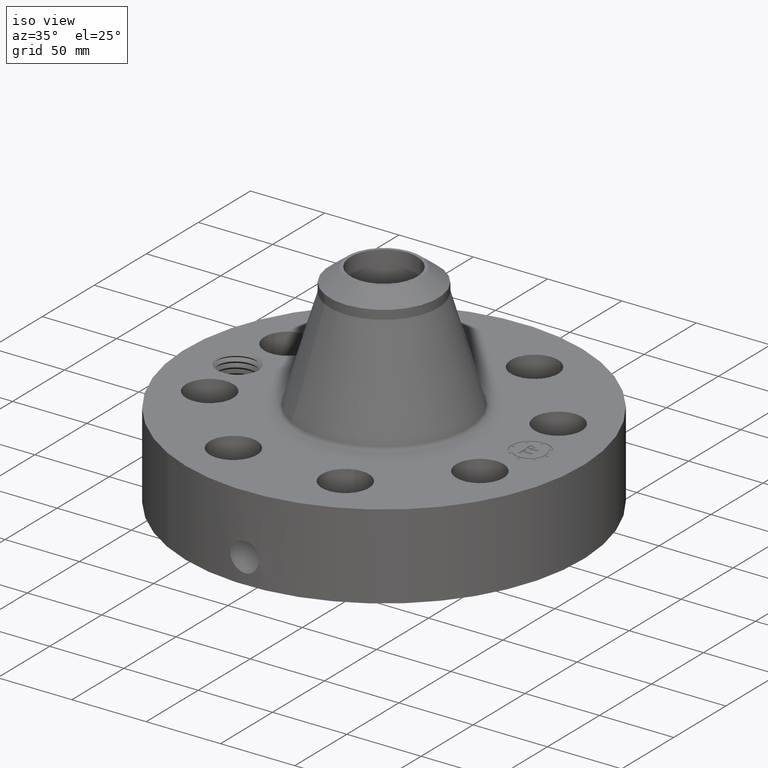
[diagram: clean part render]
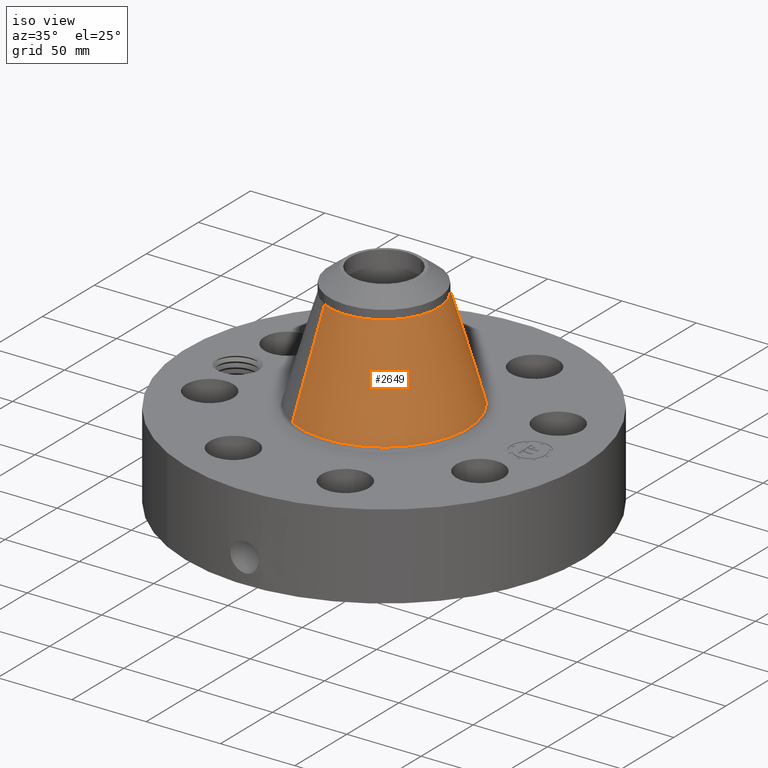
[diagram: same view with one face highlighted and labeled with its STEP entity id]
A machine part, iso view. The second image highlights one B-rep face of the part: STEP entity #2649.
In plain terms, the highlighted conical surface has half-angle 16.307 deg.
Its self-contained STEP definition (entity closure, byte-faithful):
#1891=AXIS2_PLACEMENT_3D('Circle Axis2P3D',#1889,#1890,$) ;
#2622=AXIS2_PLACEMENT_3D('Cone Axis2P3D',#2619,#2620,#2621) ;
#2633=AXIS2_PLACEMENT_3D('Circle Axis2P3D',#2631,#2632,$) ;
#1886=CARTESIAN_POINT('Vertex',(1.06660238165,1.95240256357,2.58630578825)) ;
#1889=CARTESIAN_POINT('Axis2P3D Location',(0.,0.,2.58630578825)) ;
#1893=CARTESIAN_POINT('Vertex',(-1.06660238165,-1.95240256357,2.58630578825)) ;
#2619=CARTESIAN_POINT('Axis2P3D Location',(0.,0.,5.26871616062)) ;
#2624=CARTESIAN_POINT('Line Origine',(0.878487578624,1.60806072635,3.92751097444)) ;
#2628=CARTESIAN_POINT('Vertex',(0.690372775593,1.26371888913,5.26871616062)) ;
#2631=CARTESIAN_POINT('Axis2P3D Location',(0.,0.,5.26871616062)) ;
#2635=CARTESIAN_POINT('Vertex',(-0.690372775593,-1.26371888913,5.26871616062)) ;
#2638=CARTESIAN_POINT('Line Origine',(-0.878487578624,-1.60806072635,3.92751097444)) ;
#1890=DIRECTION('Axis2P3D Direction',(0.,0.,-0.0393700787402)) ;
#2620=DIRECTION('Axis2P3D Direction',(0.,0.,-0.0393700787402)) ;
#2621=DIRECTION('Axis2P3D XDirection',(-0.0188750212049,-0.0345504945626,0.)) ;
#2625=DIRECTION('Vector Direction',(0.00529982467806,0.00970126400041,-0.0377862466406)) ;
#2632=DIRECTION('Axis2P3D Direction',(0.,0.,-0.0393700787402)) ;
#2639=DIRECTION('Vector Direction',(-0.00529982467806,-0.00970126400041,-0.0377862466406)) ;
#2626=VECTOR('Line Direction',#2625,0.0393700787402) ;
#2640=VECTOR('Line Direction',#2639,0.0393700787402) ;
#2644=ORIENTED_EDGE('',*,*,#1895,.F.) ;
#2645=ORIENTED_EDGE('',*,*,#2630,.T.) ;
#2646=ORIENTED_EDGE('',*,*,#2637,.T.) ;
#2647=ORIENTED_EDGE('',*,*,#2642,.F.) ;
#2649=ADVANCED_FACE('PartBody',(#2648),#2623,.T.) ;
#1892=CIRCLE('generated circle',#1891,2.22475086488) ;
#2634=CIRCLE('generated circle',#2633,1.44000000001) ;
#2623=CONICAL_SURFACE('Cone',#2622,1.44000000001,0.284612017236) ;
#1895=EDGE_CURVE('',#1887,#1894,#1892,.T.) ;
#2630=EDGE_CURVE('',#1887,#2629,#2627,.F.) ;
#2637=EDGE_CURVE('',#2629,#2636,#2634,.T.) ;
#2642=EDGE_CURVE('',#1894,#2636,#2641,.F.) ;
#2643=EDGE_LOOP('',(#2644,#2645,#2646,#2647)) ;
#2648=FACE_OUTER_BOUND('',#2643,.T.) ;
#2627=LINE('Line',#2624,#2626) ;
#2641=LINE('Line',#2638,#2640) ;
#1887=VERTEX_POINT('',#1886) ;
#1894=VERTEX_POINT('',#1893) ;
#2629=VERTEX_POINT('',#2628) ;
#2636=VERTEX_POINT('',#2635) ;